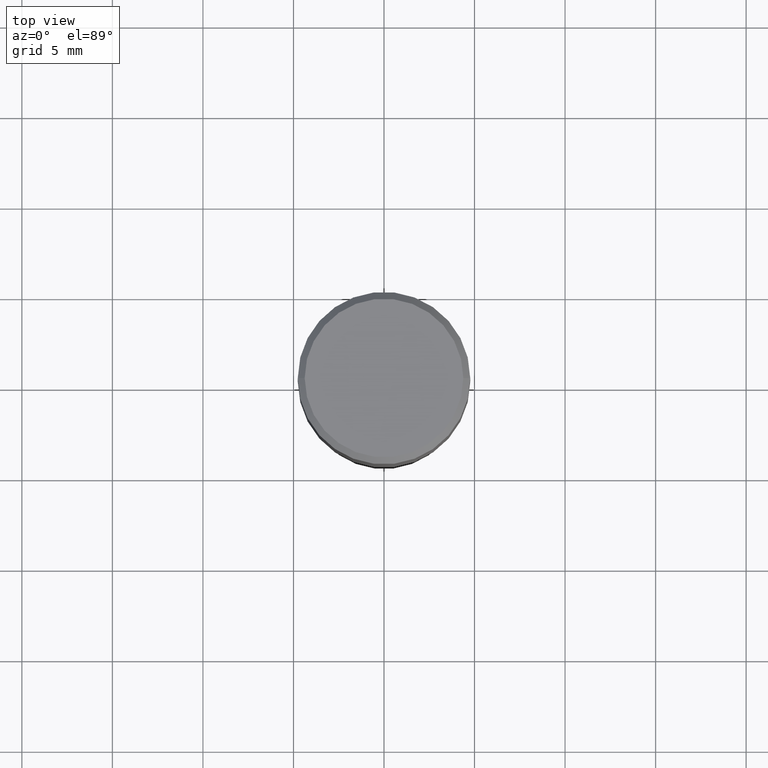
[diagram: clean part render]
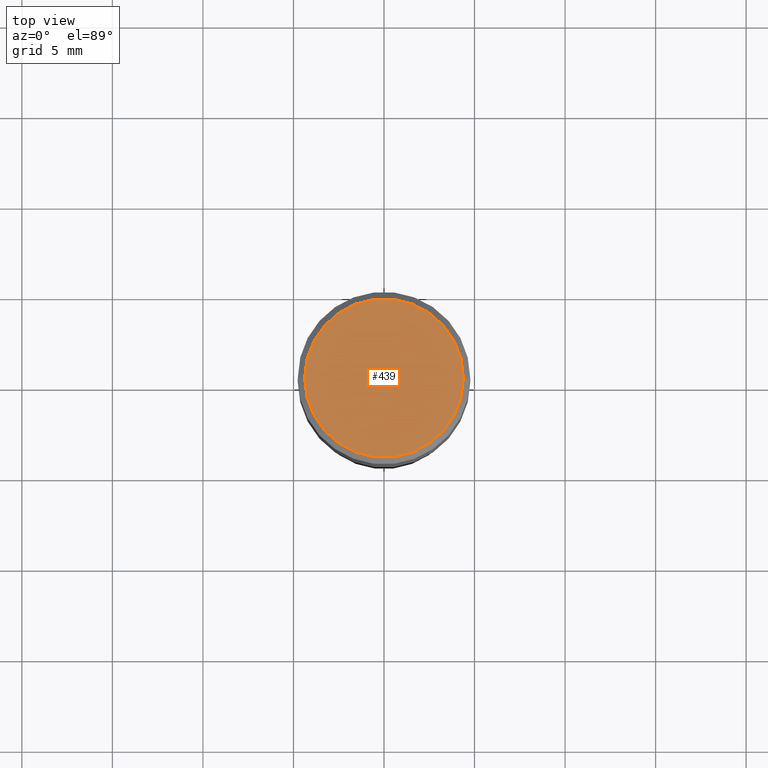
[diagram: same view with one face highlighted and labeled with its STEP entity id]
A machine part, top view. The second image highlights one B-rep face of the part: STEP entity #439.
In plain terms, the highlighted planar face has unit normal (0, -0, -1).
Its self-contained STEP definition (entity closure, byte-faithful):
#3 = DIRECTION ( 'NONE',  ( -2.445468806185136597E-29, 3.491481338843145583E-15, 1.000000000000000000 ) ) ;
#33 = CARTESIAN_POINT ( 'NONE',  ( 6.448077620501702025E-46, -9.206145924434830208E-32, -2.636744989015224123E-17 ) ) ;
#36 = FACE_OUTER_BOUND ( 'NONE', #76, .T. ) ;
#38 = EDGE_CURVE ( 'NONE', #260, #233, #217, .T. ) ;
#39 = AXIS2_PLACEMENT_3D ( 'NONE', #33, #3, #269 ) ;
#76 = EDGE_LOOP ( 'NONE', ( #145, #460 ) ) ;
#79 = CARTESIAN_POINT ( 'NONE',  ( -0.1725000000000000144, 1.230747171942204192E-15, -2.636744989016075847E-17 ) ) ;
#99 = DIRECTION ( 'NONE',  ( -2.445468806185136597E-29, 3.491481338843145583E-15, 1.000000000000000000 ) ) ;
#104 = AXIS2_PLACEMENT_3D ( 'NONE', #218, #143, #315 ) ;
#105 = CARTESIAN_POINT ( 'NONE',  ( 0.1725000000000000144, -1.261075749640199308E-15, -2.636744989014362231E-17 ) ) ;
#110 = EDGE_CURVE ( 'NONE', #233, #260, #135, .T. ) ;
#135 = CIRCLE ( 'NONE', #141, 0.1725000000000000144 ) ;
#141 = AXIS2_PLACEMENT_3D ( 'NONE', #465, #99, #239 ) ;
#143 = DIRECTION ( 'NONE',  ( 2.438088387897960049E-29, -3.491481338843145188E-15, -1.000000000000000000 ) ) ;
#145 = ORIENTED_EDGE ( 'NONE', *, *, #38, .T. ) ;
#217 = CIRCLE ( 'NONE', #39, 0.1725000000000000144 ) ;
#218 = CARTESIAN_POINT ( 'NONE',  ( 1.204561061900881047E-15, 0.1725000000000000144, -6.154642558955188135E-16 ) ) ;
#233 = VERTEX_POINT ( 'NONE', #105 ) ;
#239 = DIRECTION ( 'NONE',  ( 1.000000000000000000, -6.982962677686266711E-15, 4.876912640186324808E-29 ) ) ;
#260 = VERTEX_POINT ( 'NONE', #79 ) ;
#269 = DIRECTION ( 'NONE',  ( 1.000000000000000000, -6.982962677686266711E-15, 4.876912640186324808E-29 ) ) ;
#315 = DIRECTION ( 'NONE',  ( -1.000000000000000000, 6.982962677686265922E-15, -4.876176775795935793E-29 ) ) ;
#369 = PLANE ( 'NONE',  #104 ) ;
#439 = ADVANCED_FACE ( 'NONE', ( #36 ), #369, .F. ) ;
#460 = ORIENTED_EDGE ( 'NONE', *, *, #110, .T. ) ;
#465 = CARTESIAN_POINT ( 'NONE',  ( 6.448077620501702025E-46, -9.206145924434830208E-32, -2.636744989015224123E-17 ) ) ;